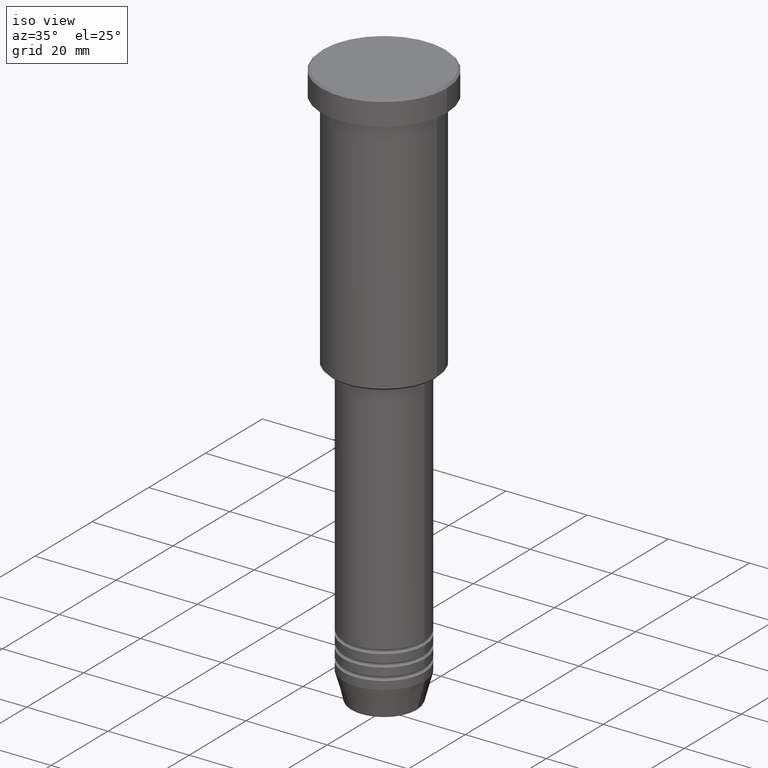
[diagram: clean part render]
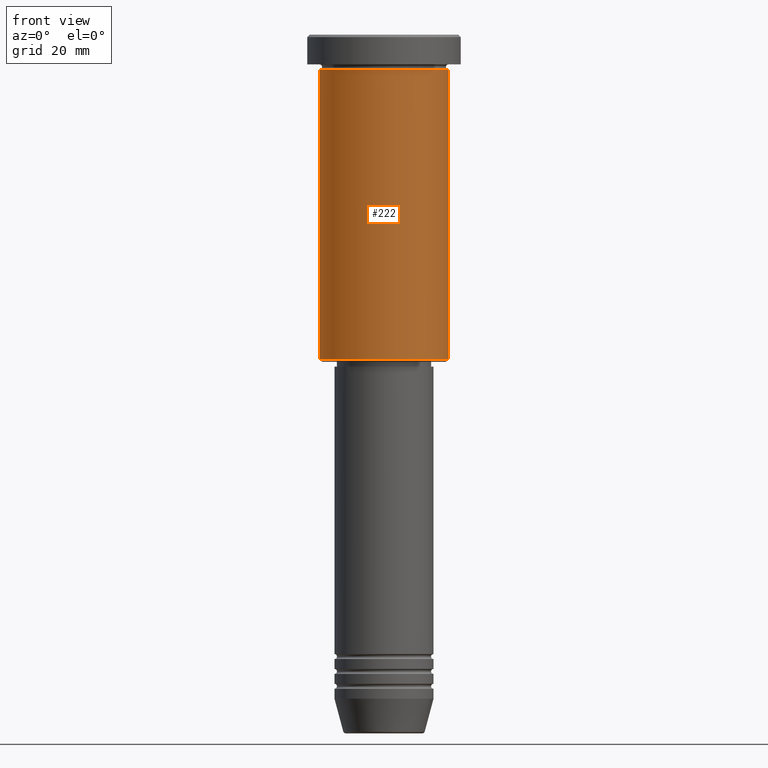
[diagram: tour spotlight — one face highlighted and labeled with its STEP entity id]
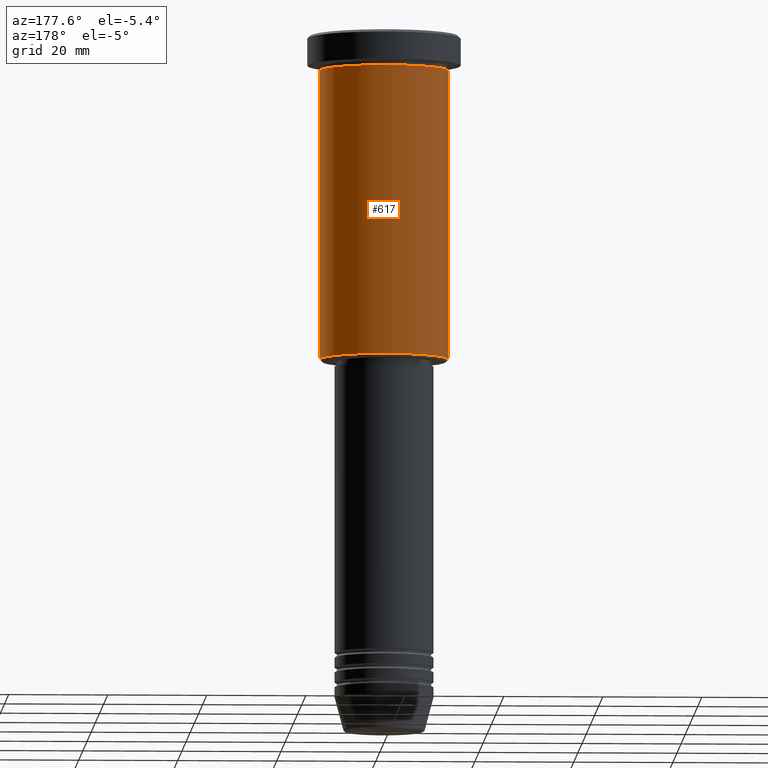
[diagram: tour spotlight — one face highlighted and labeled with its STEP entity id]
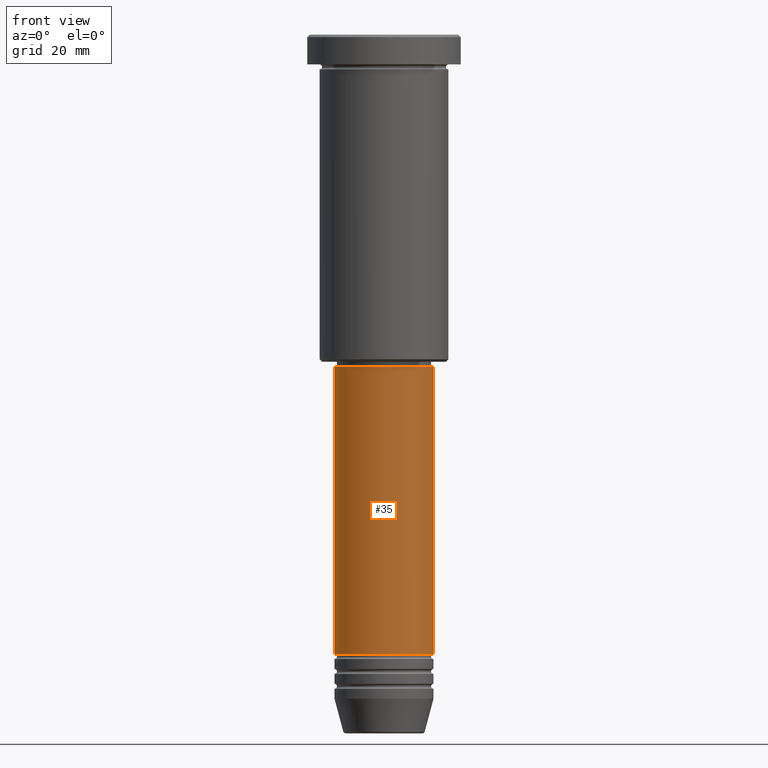
[diagram: tour spotlight — one face highlighted and labeled with its STEP entity id]
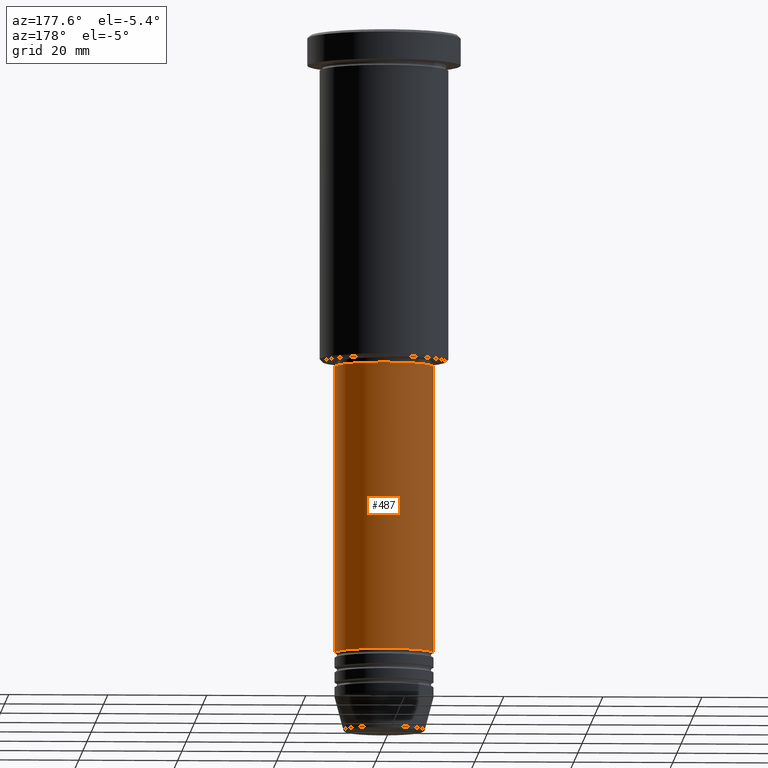
[diagram: tour spotlight — one face highlighted and labeled with its STEP entity id]
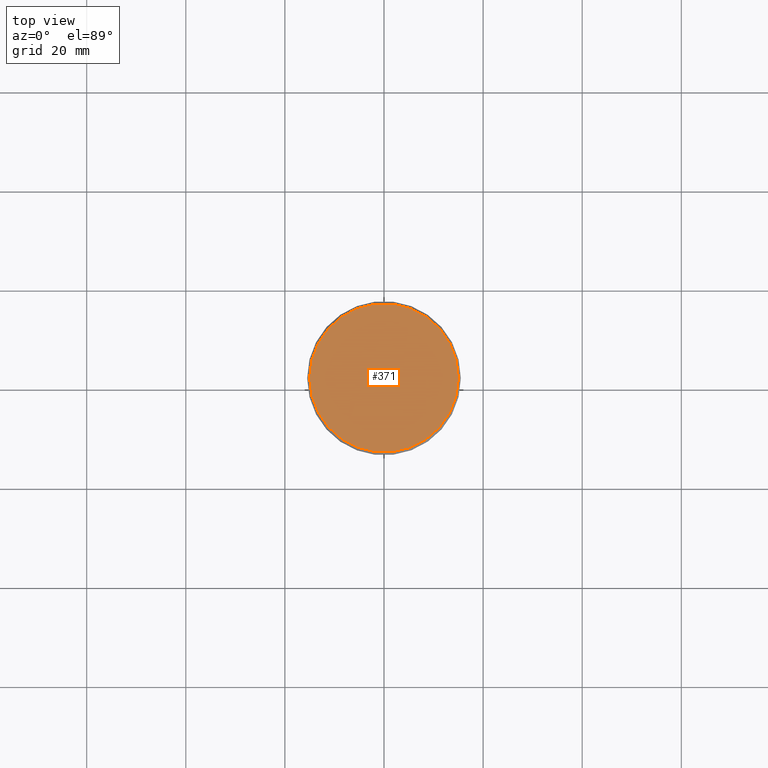
[diagram: tour spotlight — one face highlighted and labeled with its STEP entity id]
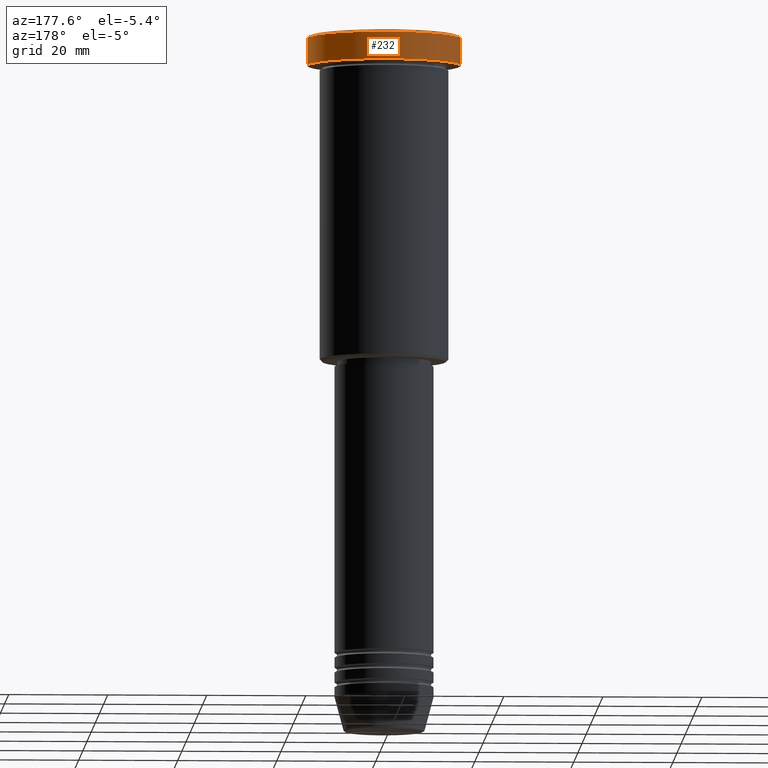
[diagram: tour spotlight — one face highlighted and labeled with its STEP entity id]
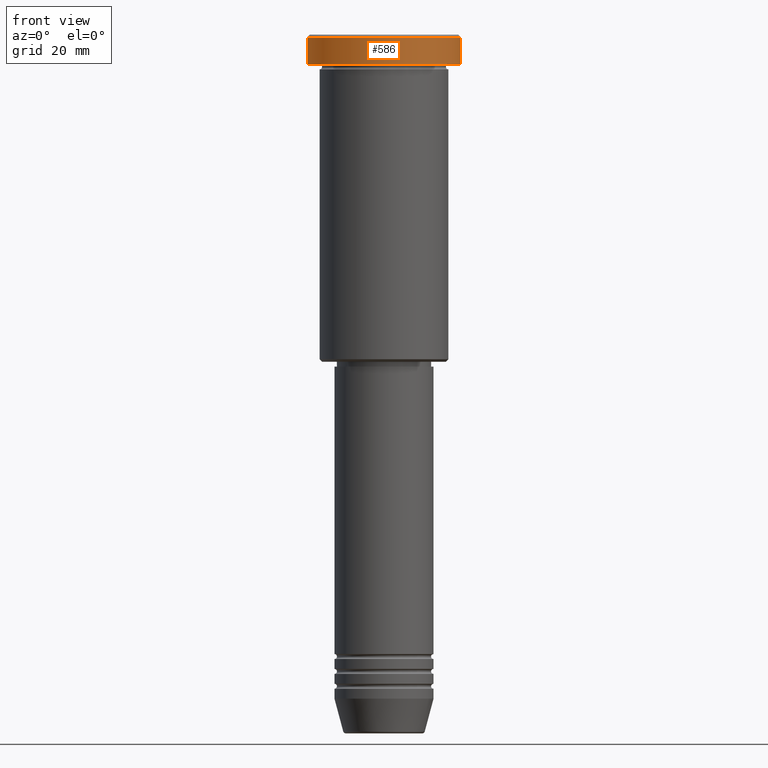
[diagram: tour spotlight — one face highlighted and labeled with its STEP entity id]
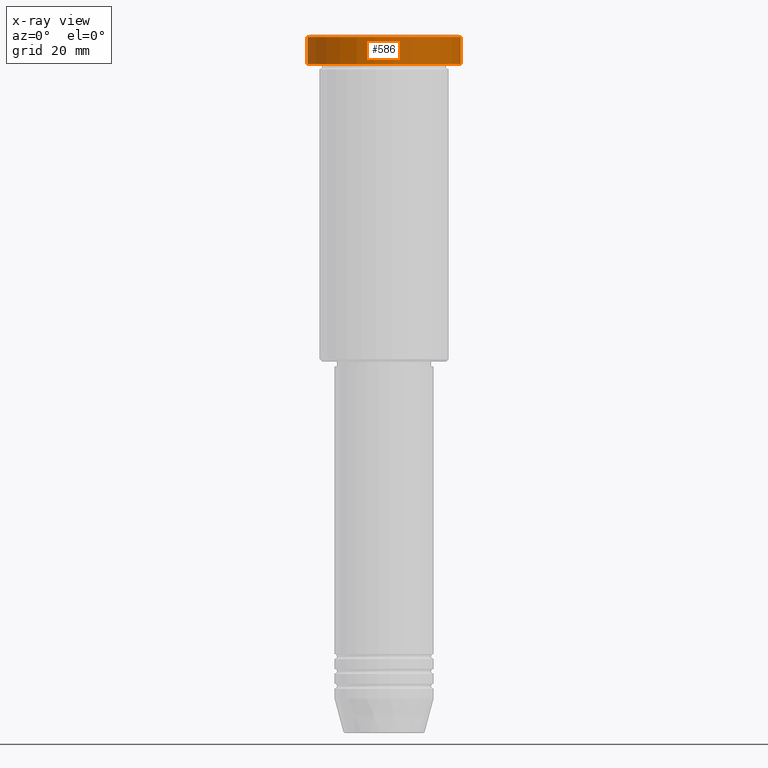
[diagram: x-ray of the same camera — body ghosted, this tour face saturated]
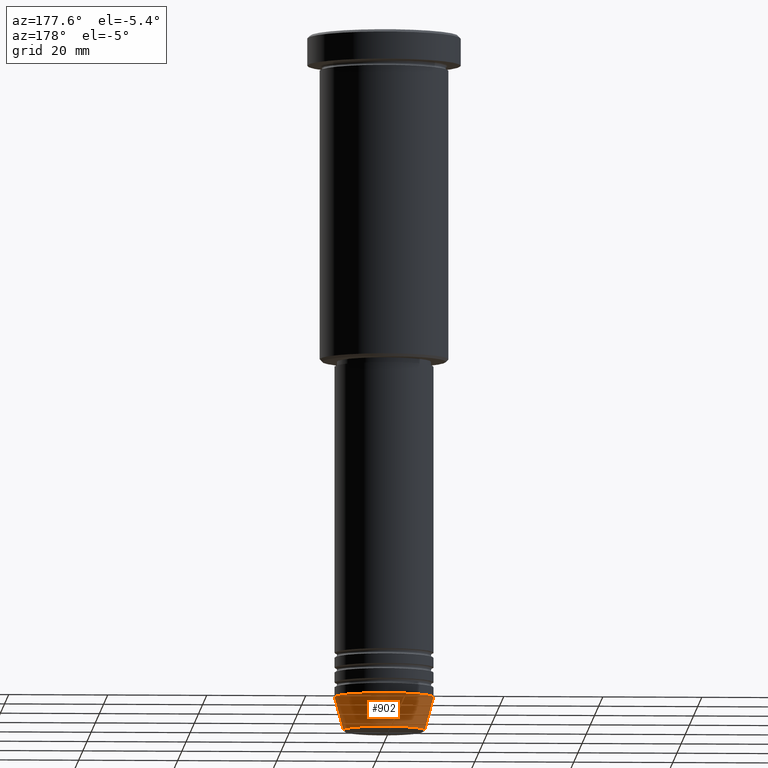
[diagram: tour spotlight — one face highlighted and labeled with its STEP entity id]
A machine part: a face-by-face anatomy tour. The part has 43 B-rep faces; the first image is the clean iso view, then the 8 largest visible faces are spotlighted one at a time (largest first), each with its STEP entity span.

Face 1 — front view, entity #222. In plain terms, the highlighted cylindrical surface (partial cylindrical patch) has radius 13 mm, axis along (-0, -0, 1).
Definition (entity closure, byte-faithful):
#6 = EDGE_CURVE ( 'NONE', #512, #1166, #1007, .T. ) ;
#100 = VECTOR ( 'NONE', #834, 1000.000000000000000 ) ;
#168 = CARTESIAN_POINT ( 'NONE',  ( -13.00000000000000000, 1.592040838891559095E-15, 0.000000000000000000 ) ) ;
#172 = CARTESIAN_POINT ( 'NONE',  ( 0.000000000000000000, 0.000000000000000000, -65.49999999999997158 ) ) ;
#221 = CARTESIAN_POINT ( 'NONE',  ( 13.00000000000000000, 0.000000000000000000, -6.999999999999995559 ) ) ;
#222 = ADVANCED_FACE ( 'NONE', ( #945 ), #927, .T. ) ;
#260 = DIRECTION ( 'NONE',  ( 1.000000000000000000, 0.000000000000000000, 0.000000000000000000 ) ) ;
#317 = VERTEX_POINT ( 'NONE', #385 ) ;
#385 = CARTESIAN_POINT ( 'NONE',  ( -13.00000000000000000, 1.592040838891559095E-15, -65.49999999999997158 ) ) ;
#393 = CARTESIAN_POINT ( 'NONE',  ( -13.00000000000000000, 1.592040838891559095E-15, -6.999999999999995559 ) ) ;
#438 = LINE ( 'NONE', #168, #861 ) ;
#470 = DIRECTION ( 'NONE',  ( -0.000000000000000000, -0.000000000000000000, 1.000000000000000000 ) ) ;
#496 = CARTESIAN_POINT ( 'NONE',  ( 0.000000000000000000, 0.000000000000000000, 0.000000000000000000 ) ) ;
#512 = VERTEX_POINT ( 'NONE', #920 ) ;
#547 = EDGE_LOOP ( 'NONE', ( #700, #639, #793, #966 ) ) ;
#633 = EDGE_CURVE ( 'NONE', #317, #1155, #438, .T. ) ;
#639 = ORIENTED_EDGE ( 'NONE', *, *, #1077, .T. ) ;
#671 = CIRCLE ( 'NONE', #1107, 13.00000000000000000 ) ;
#696 = EDGE_CURVE ( 'NONE', #1155, #1166, #795, .T. ) ;
#700 = ORIENTED_EDGE ( 'NONE', *, *, #633, .F. ) ;
#793 = ORIENTED_EDGE ( 'NONE', *, *, #6, .T. ) ;
#795 = CIRCLE ( 'NONE', #1124, 13.00000000000000000 ) ;
#803 = DIRECTION ( 'NONE',  ( -0.000000000000000000, -0.000000000000000000, 1.000000000000000000 ) ) ;
#826 = DIRECTION ( 'NONE',  ( -1.000000000000000000, 0.000000000000000000, 0.000000000000000000 ) ) ;
#834 = DIRECTION ( 'NONE',  ( -0.000000000000000000, -0.000000000000000000, 1.000000000000000000 ) ) ;
#851 = DIRECTION ( 'NONE',  ( 1.000000000000000000, 0.000000000000000000, 0.000000000000000000 ) ) ;
#861 = VECTOR ( 'NONE', #1156, 1000.000000000000000 ) ;
#920 = CARTESIAN_POINT ( 'NONE',  ( 13.00000000000000000, 0.000000000000000000, -65.49999999999997158 ) ) ;
#927 = CYLINDRICAL_SURFACE ( 'NONE', #1164, 13.00000000000000000 ) ;
#937 = CARTESIAN_POINT ( 'NONE',  ( 13.00000000000000000, 0.000000000000000000, 0.000000000000000000 ) ) ;
#945 = FACE_OUTER_BOUND ( 'NONE', #547, .T. ) ;
#966 = ORIENTED_EDGE ( 'NONE', *, *, #696, .F. ) ;
#989 = CARTESIAN_POINT ( 'NONE',  ( 0.000000000000000000, 0.000000000000000000, -6.999999999999995559 ) ) ;
#1007 = LINE ( 'NONE', #937, #100 ) ;
#1013 = DIRECTION ( 'NONE',  ( -0.000000000000000000, -0.000000000000000000, 1.000000000000000000 ) ) ;
#1077 = EDGE_CURVE ( 'NONE', #317, #512, #671, .T. ) ;
#1107 = AXIS2_PLACEMENT_3D ( 'NONE', #172, #470, #826 ) ;
#1124 = AXIS2_PLACEMENT_3D ( 'NONE', #989, #803, #260 ) ;
#1155 = VERTEX_POINT ( 'NONE', #393 ) ;
#1156 = DIRECTION ( 'NONE',  ( -0.000000000000000000, -0.000000000000000000, 1.000000000000000000 ) ) ;
#1164 = AXIS2_PLACEMENT_3D ( 'NONE', #496, #1013, #851 ) ;
#1166 = VERTEX_POINT ( 'NONE', #221 ) ;

Face 2 — auxiliary view, entity #617. In plain terms, the highlighted cylindrical surface (partial cylindrical patch) has radius 13 mm, axis along (-0, -0, 1).
Definition (entity closure, byte-faithful):
#6 = EDGE_CURVE ( 'NONE', #512, #1166, #1007, .T. ) ;
#58 = EDGE_LOOP ( 'NONE', ( #169, #593, #620, #604 ) ) ;
#100 = VECTOR ( 'NONE', #834, 1000.000000000000000 ) ;
#132 = DIRECTION ( 'NONE',  ( -0.000000000000000000, -0.000000000000000000, 1.000000000000000000 ) ) ;
#154 = CARTESIAN_POINT ( 'NONE',  ( 0.000000000000000000, 0.000000000000000000, -6.999999999999995559 ) ) ;
#168 = CARTESIAN_POINT ( 'NONE',  ( -13.00000000000000000, 1.592040838891559095E-15, 0.000000000000000000 ) ) ;
#169 = ORIENTED_EDGE ( 'NONE', *, *, #1171, .T. ) ;
#221 = CARTESIAN_POINT ( 'NONE',  ( 13.00000000000000000, 0.000000000000000000, -6.999999999999995559 ) ) ;
#226 = CARTESIAN_POINT ( 'NONE',  ( 0.000000000000000000, 0.000000000000000000, -65.49999999999997158 ) ) ;
#265 = FACE_OUTER_BOUND ( 'NONE', #58, .T. ) ;
#291 = CARTESIAN_POINT ( 'NONE',  ( 0.000000000000000000, 0.000000000000000000, 0.000000000000000000 ) ) ;
#317 = VERTEX_POINT ( 'NONE', #385 ) ;
#343 = DIRECTION ( 'NONE',  ( 1.000000000000000000, 0.000000000000000000, 0.000000000000000000 ) ) ;
#374 = AXIS2_PLACEMENT_3D ( 'NONE', #291, #1028, #650 ) ;
#385 = CARTESIAN_POINT ( 'NONE',  ( -13.00000000000000000, 1.592040838891559095E-15, -65.49999999999997158 ) ) ;
#393 = CARTESIAN_POINT ( 'NONE',  ( -13.00000000000000000, 1.592040838891559095E-15, -6.999999999999995559 ) ) ;
#438 = LINE ( 'NONE', #168, #861 ) ;
#451 = AXIS2_PLACEMENT_3D ( 'NONE', #154, #712, #343 ) ;
#512 = VERTEX_POINT ( 'NONE', #920 ) ;
#538 = EDGE_CURVE ( 'NONE', #1166, #1155, #995, .T. ) ;
#593 = ORIENTED_EDGE ( 'NONE', *, *, #633, .T. ) ;
#604 = ORIENTED_EDGE ( 'NONE', *, *, #6, .F. ) ;
#617 = ADVANCED_FACE ( 'NONE', ( #265 ), #701, .T. ) ;
#620 = ORIENTED_EDGE ( 'NONE', *, *, #538, .F. ) ;
#633 = EDGE_CURVE ( 'NONE', #317, #1155, #438, .T. ) ;
#650 = DIRECTION ( 'NONE',  ( 1.000000000000000000, 0.000000000000000000, 0.000000000000000000 ) ) ;
#701 = CYLINDRICAL_SURFACE ( 'NONE', #374, 13.00000000000000000 ) ;
#712 = DIRECTION ( 'NONE',  ( -0.000000000000000000, -0.000000000000000000, 1.000000000000000000 ) ) ;
#740 = DIRECTION ( 'NONE',  ( -1.000000000000000000, 0.000000000000000000, 0.000000000000000000 ) ) ;
#834 = DIRECTION ( 'NONE',  ( -0.000000000000000000, -0.000000000000000000, 1.000000000000000000 ) ) ;
#861 = VECTOR ( 'NONE', #1156, 1000.000000000000000 ) ;
#920 = CARTESIAN_POINT ( 'NONE',  ( 13.00000000000000000, 0.000000000000000000, -65.49999999999997158 ) ) ;
#922 = AXIS2_PLACEMENT_3D ( 'NONE', #226, #132, #740 ) ;
#937 = CARTESIAN_POINT ( 'NONE',  ( 13.00000000000000000, 0.000000000000000000, 0.000000000000000000 ) ) ;
#995 = CIRCLE ( 'NONE', #451, 13.00000000000000000 ) ;
#1007 = LINE ( 'NONE', #937, #100 ) ;
#1028 = DIRECTION ( 'NONE',  ( -0.000000000000000000, -0.000000000000000000, 1.000000000000000000 ) ) ;
#1126 = CIRCLE ( 'NONE', #922, 13.00000000000000000 ) ;
#1155 = VERTEX_POINT ( 'NONE', #393 ) ;
#1156 = DIRECTION ( 'NONE',  ( -0.000000000000000000, -0.000000000000000000, 1.000000000000000000 ) ) ;
#1166 = VERTEX_POINT ( 'NONE', #221 ) ;
#1171 = EDGE_CURVE ( 'NONE', #512, #317, #1126, .T. ) ;

Face 3 — front view, entity #35. In plain terms, the highlighted cylindrical surface (partial cylindrical patch) has radius 10 mm, axis along (-0, -0, 1).
Definition (entity closure, byte-faithful):
#29 = DIRECTION ( 'NONE',  ( -0.000000000000000000, -0.000000000000000000, 1.000000000000000000 ) ) ;
#35 = ADVANCED_FACE ( 'NONE', ( #660 ), #1024, .T. ) ;
#44 = CIRCLE ( 'NONE', #784, 10.00000000000000000 ) ;
#76 = LINE ( 'NONE', #786, #492 ) ;
#127 = DIRECTION ( 'NONE',  ( 1.000000000000000000, 0.000000000000000000, 0.000000000000000000 ) ) ;
#130 = VERTEX_POINT ( 'NONE', #283 ) ;
#198 = DIRECTION ( 'NONE',  ( -0.000000000000000000, -0.000000000000000000, 1.000000000000000000 ) ) ;
#205 = CARTESIAN_POINT ( 'NONE',  ( 0.000000000000000000, 0.000000000000000000, -67.00000000000000000 ) ) ;
#208 = CARTESIAN_POINT ( 'NONE',  ( 0.000000000000000000, 0.000000000000000000, 0.000000000000000000 ) ) ;
#277 = VERTEX_POINT ( 'NONE', #468 ) ;
#283 = CARTESIAN_POINT ( 'NONE',  ( -10.00000000000000000, 1.224646799147353256E-15, -124.9999999999999716 ) ) ;
#306 = DIRECTION ( 'NONE',  ( 1.000000000000000000, 0.000000000000000000, 0.000000000000000000 ) ) ;
#307 = ORIENTED_EDGE ( 'NONE', *, *, #388, .T. ) ;
#333 = EDGE_CURVE ( 'NONE', #560, #277, #616, .T. ) ;
#372 = ORIENTED_EDGE ( 'NONE', *, *, #557, .F. ) ;
#388 = EDGE_CURVE ( 'NONE', #1103, #277, #494, .T. ) ;
#428 = EDGE_LOOP ( 'NONE', ( #372, #997, #307, #455 ) ) ;
#437 = EDGE_CURVE ( 'NONE', #130, #1103, #44, .T. ) ;
#453 = CARTESIAN_POINT ( 'NONE',  ( 10.00000000000000000, 0.000000000000000000, -124.9999999999999716 ) ) ;
#455 = ORIENTED_EDGE ( 'NONE', *, *, #333, .F. ) ;
#468 = CARTESIAN_POINT ( 'NONE',  ( 10.00000000000000000, 0.000000000000000000, -67.00000000000000000 ) ) ;
#492 = VECTOR ( 'NONE', #1062, 1000.000000000000000 ) ;
#494 = LINE ( 'NONE', #677, #1070 ) ;
#557 = EDGE_CURVE ( 'NONE', #130, #560, #76, .T. ) ;
#560 = VERTEX_POINT ( 'NONE', #968 ) ;
#616 = CIRCLE ( 'NONE', #1110, 10.00000000000000000 ) ;
#660 = FACE_OUTER_BOUND ( 'NONE', #428, .T. ) ;
#677 = CARTESIAN_POINT ( 'NONE',  ( 10.00000000000000000, 0.000000000000000000, 0.000000000000000000 ) ) ;
#691 = AXIS2_PLACEMENT_3D ( 'NONE', #208, #198, #306 ) ;
#755 = DIRECTION ( 'NONE',  ( 1.000000000000000000, 0.000000000000000000, 0.000000000000000000 ) ) ;
#784 = AXIS2_PLACEMENT_3D ( 'NONE', #1129, #29, #755 ) ;
#786 = CARTESIAN_POINT ( 'NONE',  ( -10.00000000000000000, 1.224646799147353256E-15, 0.000000000000000000 ) ) ;
#841 = DIRECTION ( 'NONE',  ( -0.000000000000000000, -0.000000000000000000, 1.000000000000000000 ) ) ;
#941 = DIRECTION ( 'NONE',  ( -0.000000000000000000, -0.000000000000000000, 1.000000000000000000 ) ) ;
#968 = CARTESIAN_POINT ( 'NONE',  ( -10.00000000000000000, 1.224646799147353256E-15, -67.00000000000000000 ) ) ;
#997 = ORIENTED_EDGE ( 'NONE', *, *, #437, .T. ) ;
#1024 = CYLINDRICAL_SURFACE ( 'NONE', #691, 10.00000000000000000 ) ;
#1062 = DIRECTION ( 'NONE',  ( -0.000000000000000000, -0.000000000000000000, 1.000000000000000000 ) ) ;
#1070 = VECTOR ( 'NONE', #941, 1000.000000000000000 ) ;
#1103 = VERTEX_POINT ( 'NONE', #453 ) ;
#1110 = AXIS2_PLACEMENT_3D ( 'NONE', #205, #841, #127 ) ;
#1129 = CARTESIAN_POINT ( 'NONE',  ( 0.000000000000000000, 0.000000000000000000, -124.9999999999999716 ) ) ;

Face 4 — auxiliary view, entity #487. In plain terms, the highlighted cylindrical surface (partial cylindrical patch) has radius 10 mm, axis along (-0, -0, 1).
Definition (entity closure, byte-faithful):
#4 = CIRCLE ( 'NONE', #883, 10.00000000000000000 ) ;
#42 = DIRECTION ( 'NONE',  ( -0.000000000000000000, -0.000000000000000000, 1.000000000000000000 ) ) ;
#55 = EDGE_CURVE ( 'NONE', #277, #560, #4, .T. ) ;
#76 = LINE ( 'NONE', #786, #492 ) ;
#130 = VERTEX_POINT ( 'NONE', #283 ) ;
#237 = CARTESIAN_POINT ( 'NONE',  ( 0.000000000000000000, 0.000000000000000000, 0.000000000000000000 ) ) ;
#243 = DIRECTION ( 'NONE',  ( 1.000000000000000000, 0.000000000000000000, 0.000000000000000000 ) ) ;
#277 = VERTEX_POINT ( 'NONE', #468 ) ;
#283 = CARTESIAN_POINT ( 'NONE',  ( -10.00000000000000000, 1.224646799147353256E-15, -124.9999999999999716 ) ) ;
#383 = ORIENTED_EDGE ( 'NONE', *, *, #388, .F. ) ;
#388 = EDGE_CURVE ( 'NONE', #1103, #277, #494, .T. ) ;
#443 = ORIENTED_EDGE ( 'NONE', *, *, #460, .T. ) ;
#453 = CARTESIAN_POINT ( 'NONE',  ( 10.00000000000000000, 0.000000000000000000, -124.9999999999999716 ) ) ;
#460 = EDGE_CURVE ( 'NONE', #1103, #130, #864, .T. ) ;
#468 = CARTESIAN_POINT ( 'NONE',  ( 10.00000000000000000, 0.000000000000000000, -67.00000000000000000 ) ) ;
#487 = ADVANCED_FACE ( 'NONE', ( #687 ), #1052, .T. ) ;
#492 = VECTOR ( 'NONE', #1062, 1000.000000000000000 ) ;
#494 = LINE ( 'NONE', #677, #1070 ) ;
#513 = DIRECTION ( 'NONE',  ( 1.000000000000000000, 0.000000000000000000, 0.000000000000000000 ) ) ;
#514 = DIRECTION ( 'NONE',  ( -0.000000000000000000, -0.000000000000000000, 1.000000000000000000 ) ) ;
#557 = EDGE_CURVE ( 'NONE', #130, #560, #76, .T. ) ;
#560 = VERTEX_POINT ( 'NONE', #968 ) ;
#570 = EDGE_LOOP ( 'NONE', ( #443, #1097, #950, #383 ) ) ;
#636 = AXIS2_PLACEMENT_3D ( 'NONE', #237, #1115, #1168 ) ;
#677 = CARTESIAN_POINT ( 'NONE',  ( 10.00000000000000000, 0.000000000000000000, 0.000000000000000000 ) ) ;
#687 = FACE_OUTER_BOUND ( 'NONE', #570, .T. ) ;
#786 = CARTESIAN_POINT ( 'NONE',  ( -10.00000000000000000, 1.224646799147353256E-15, 0.000000000000000000 ) ) ;
#859 = CARTESIAN_POINT ( 'NONE',  ( 0.000000000000000000, 0.000000000000000000, -124.9999999999999716 ) ) ;
#864 = CIRCLE ( 'NONE', #1148, 10.00000000000000000 ) ;
#883 = AXIS2_PLACEMENT_3D ( 'NONE', #919, #514, #243 ) ;
#919 = CARTESIAN_POINT ( 'NONE',  ( 0.000000000000000000, 0.000000000000000000, -67.00000000000000000 ) ) ;
#941 = DIRECTION ( 'NONE',  ( -0.000000000000000000, -0.000000000000000000, 1.000000000000000000 ) ) ;
#950 = ORIENTED_EDGE ( 'NONE', *, *, #55, .F. ) ;
#968 = CARTESIAN_POINT ( 'NONE',  ( -10.00000000000000000, 1.224646799147353256E-15, -67.00000000000000000 ) ) ;
#1052 = CYLINDRICAL_SURFACE ( 'NONE', #636, 10.00000000000000000 ) ;
#1062 = DIRECTION ( 'NONE',  ( -0.000000000000000000, -0.000000000000000000, 1.000000000000000000 ) ) ;
#1070 = VECTOR ( 'NONE', #941, 1000.000000000000000 ) ;
#1097 = ORIENTED_EDGE ( 'NONE', *, *, #557, .T. ) ;
#1103 = VERTEX_POINT ( 'NONE', #453 ) ;
#1115 = DIRECTION ( 'NONE',  ( -0.000000000000000000, -0.000000000000000000, 1.000000000000000000 ) ) ;
#1148 = AXIS2_PLACEMENT_3D ( 'NONE', #859, #42, #513 ) ;
#1168 = DIRECTION ( 'NONE',  ( 1.000000000000000000, 0.000000000000000000, 0.000000000000000000 ) ) ;

Face 5 — top view, entity #371. In plain terms, the highlighted planar face has unit normal (0, -0, 1).
Definition (entity closure, byte-faithful):
#131 = PLANE ( 'NONE',  #925 ) ;
#215 = CIRCLE ( 'NONE', #1053, 14.99999999999998579 ) ;
#349 = DIRECTION ( 'NONE',  ( -0.000000000000000000, -0.000000000000000000, 1.000000000000000000 ) ) ;
#360 = VERTEX_POINT ( 'NONE', #1045 ) ;
#371 = ADVANCED_FACE ( 'NONE', ( #589 ), #131, .T. ) ;
#390 = CARTESIAN_POINT ( 'NONE',  ( -14.99999999999998579, 0.000000000000000000, 0.000000000000000000 ) ) ;
#399 = DIRECTION ( 'NONE',  ( -0.000000000000000000, -0.000000000000000000, 1.000000000000000000 ) ) ;
#441 = DIRECTION ( 'NONE',  ( 1.000000000000000000, 0.000000000000000000, 0.000000000000000000 ) ) ;
#510 = CARTESIAN_POINT ( 'NONE',  ( 0.000000000000000000, 0.000000000000000000, 0.000000000000000000 ) ) ;
#583 = EDGE_LOOP ( 'NONE', ( #812, #1173 ) ) ;
#584 = DIRECTION ( 'NONE',  ( 1.000000000000000000, 0.000000000000000000, 0.000000000000000000 ) ) ;
#589 = FACE_OUTER_BOUND ( 'NONE', #583, .T. ) ;
#812 = ORIENTED_EDGE ( 'NONE', *, *, #867, .T. ) ;
#867 = EDGE_CURVE ( 'NONE', #1021, #360, #215, .T. ) ;
#880 = CIRCLE ( 'NONE', #972, 14.99999999999998579 ) ;
#925 = AXIS2_PLACEMENT_3D ( 'NONE', #510, #951, #584 ) ;
#934 = DIRECTION ( 'NONE',  ( 1.000000000000000000, 0.000000000000000000, 0.000000000000000000 ) ) ;
#951 = DIRECTION ( 'NONE',  ( 0.000000000000000000, -0.000000000000000000, 1.000000000000000000 ) ) ;
#972 = AXIS2_PLACEMENT_3D ( 'NONE', #1122, #399, #934 ) ;
#1021 = VERTEX_POINT ( 'NONE', #390 ) ;
#1045 = CARTESIAN_POINT ( 'NONE',  ( 14.99999999999998579, 1.867586368699712587E-15, 0.000000000000000000 ) ) ;
#1053 = AXIS2_PLACEMENT_3D ( 'NONE', #1154, #349, #441 ) ;
#1122 = CARTESIAN_POINT ( 'NONE',  ( 0.000000000000000000, 0.000000000000000000, 0.000000000000000000 ) ) ;
#1154 = CARTESIAN_POINT ( 'NONE',  ( 0.000000000000000000, 0.000000000000000000, 0.000000000000000000 ) ) ;
#1159 = EDGE_CURVE ( 'NONE', #360, #1021, #880, .T. ) ;
#1173 = ORIENTED_EDGE ( 'NONE', *, *, #1159, .T. ) ;

Face 6 — auxiliary view, entity #232. In plain terms, the highlighted cylindrical surface (partial cylindrical patch) has radius 15.5 mm, axis along (-0, -0, 1).
Definition (entity closure, byte-faithful):
#14 = FACE_OUTER_BOUND ( 'NONE', #906, .T. ) ;
#21 = CIRCLE ( 'NONE', #137, 15.50000000000000000 ) ;
#51 = DIRECTION ( 'NONE',  ( 0.000000000000000000, 0.000000000000000000, -1.000000000000000000 ) ) ;
#54 = CARTESIAN_POINT ( 'NONE',  ( -15.50000000000000000, 1.898202538678397557E-15, -5.999999999999995559 ) ) ;
#74 = EDGE_CURVE ( 'NONE', #466, #888, #21, .T. ) ;
#79 = CARTESIAN_POINT ( 'NONE',  ( -15.50000000000000000, 1.898202538678397557E-15, 0.000000000000000000 ) ) ;
#137 = AXIS2_PLACEMENT_3D ( 'NONE', #771, #51, #857 ) ;
#202 = DIRECTION ( 'NONE',  ( 1.000000000000000000, 0.000000000000000000, 0.000000000000000000 ) ) ;
#218 = ORIENTED_EDGE ( 'NONE', *, *, #874, .T. ) ;
#232 = ADVANCED_FACE ( 'NONE', ( #14 ), #391, .T. ) ;
#287 = LINE ( 'NONE', #79, #992 ) ;
#295 = DIRECTION ( 'NONE',  ( -0.000000000000000000, -0.000000000000000000, 1.000000000000000000 ) ) ;
#369 = DIRECTION ( 'NONE',  ( 1.000000000000000000, 0.000000000000000000, 0.000000000000000000 ) ) ;
#391 = CYLINDRICAL_SURFACE ( 'NONE', #412, 15.50000000000000000 ) ;
#398 = VERTEX_POINT ( 'NONE', #54 ) ;
#412 = AXIS2_PLACEMENT_3D ( 'NONE', #1105, #295, #202 ) ;
#466 = VERTEX_POINT ( 'NONE', #683 ) ;
#608 = ORIENTED_EDGE ( 'NONE', *, *, #1099, .T. ) ;
#641 = EDGE_CURVE ( 'NONE', #870, #888, #980, .T. ) ;
#670 = CIRCLE ( 'NONE', #689, 15.50000000000000000 ) ;
#681 = ORIENTED_EDGE ( 'NONE', *, *, #74, .T. ) ;
#682 = CARTESIAN_POINT ( 'NONE',  ( 15.50000000000000000, 0.000000000000000000, -0.5000000000000125455 ) ) ;
#683 = CARTESIAN_POINT ( 'NONE',  ( -15.50000000000000000, 1.898202538678397557E-15, -0.5000000000000125455 ) ) ;
#686 = ORIENTED_EDGE ( 'NONE', *, *, #641, .F. ) ;
#689 = AXIS2_PLACEMENT_3D ( 'NONE', #805, #1172, #369 ) ;
#710 = CARTESIAN_POINT ( 'NONE',  ( 15.50000000000000000, 0.000000000000000000, 0.000000000000000000 ) ) ;
#716 = DIRECTION ( 'NONE',  ( -0.000000000000000000, -0.000000000000000000, 1.000000000000000000 ) ) ;
#771 = CARTESIAN_POINT ( 'NONE',  ( 0.000000000000000000, 0.000000000000000000, -0.5000000000000125455 ) ) ;
#778 = VECTOR ( 'NONE', #716, 1000.000000000000000 ) ;
#805 = CARTESIAN_POINT ( 'NONE',  ( 0.000000000000000000, 0.000000000000000000, -5.999999999999995559 ) ) ;
#857 = DIRECTION ( 'NONE',  ( 1.000000000000000000, 0.000000000000000000, 0.000000000000000000 ) ) ;
#870 = VERTEX_POINT ( 'NONE', #1162 ) ;
#874 = EDGE_CURVE ( 'NONE', #870, #398, #670, .T. ) ;
#888 = VERTEX_POINT ( 'NONE', #682 ) ;
#906 = EDGE_LOOP ( 'NONE', ( #218, #608, #681, #686 ) ) ;
#980 = LINE ( 'NONE', #710, #778 ) ;
#992 = VECTOR ( 'NONE', #1011, 1000.000000000000000 ) ;
#1011 = DIRECTION ( 'NONE',  ( -0.000000000000000000, -0.000000000000000000, 1.000000000000000000 ) ) ;
#1099 = EDGE_CURVE ( 'NONE', #398, #466, #287, .T. ) ;
#1105 = CARTESIAN_POINT ( 'NONE',  ( 0.000000000000000000, 0.000000000000000000, 0.000000000000000000 ) ) ;
#1162 = CARTESIAN_POINT ( 'NONE',  ( 15.50000000000000000, 0.000000000000000000, -5.999999999999995559 ) ) ;
#1172 = DIRECTION ( 'NONE',  ( -0.000000000000000000, -0.000000000000000000, 1.000000000000000000 ) ) ;

Face 7 — front view, entity #586. An x-ray twin of the same camera follows (body ghosted, this face saturated) — the face is partly hidden behind the body. In plain terms, the highlighted cylindrical surface (partial cylindrical patch) has radius 15.5 mm, axis along (-0, -0, 1).
Definition (entity closure, byte-faithful):
#54 = CARTESIAN_POINT ( 'NONE',  ( -15.50000000000000000, 1.898202538678397557E-15, -5.999999999999995559 ) ) ;
#79 = CARTESIAN_POINT ( 'NONE',  ( -15.50000000000000000, 1.898202538678397557E-15, 0.000000000000000000 ) ) ;
#160 = DIRECTION ( 'NONE',  ( 1.000000000000000000, 0.000000000000000000, 0.000000000000000000 ) ) ;
#190 = DIRECTION ( 'NONE',  ( 1.000000000000000000, 0.000000000000000000, 0.000000000000000000 ) ) ;
#193 = AXIS2_PLACEMENT_3D ( 'NONE', #605, #1158, #190 ) ;
#242 = FACE_OUTER_BOUND ( 'NONE', #628, .T. ) ;
#257 = DIRECTION ( 'NONE',  ( 0.000000000000000000, 0.000000000000000000, -1.000000000000000000 ) ) ;
#268 = ORIENTED_EDGE ( 'NONE', *, *, #714, .T. ) ;
#287 = LINE ( 'NONE', #79, #992 ) ;
#362 = CARTESIAN_POINT ( 'NONE',  ( 0.000000000000000000, 0.000000000000000000, -5.999999999999995559 ) ) ;
#398 = VERTEX_POINT ( 'NONE', #54 ) ;
#418 = ORIENTED_EDGE ( 'NONE', *, *, #1099, .F. ) ;
#466 = VERTEX_POINT ( 'NONE', #683 ) ;
#522 = CYLINDRICAL_SURFACE ( 'NONE', #193, 15.50000000000000000 ) ;
#544 = DIRECTION ( 'NONE',  ( 1.000000000000000000, 0.000000000000000000, 0.000000000000000000 ) ) ;
#561 = CIRCLE ( 'NONE', #879, 15.50000000000000000 ) ;
#586 = ADVANCED_FACE ( 'NONE', ( #242 ), #522, .T. ) ;
#605 = CARTESIAN_POINT ( 'NONE',  ( 0.000000000000000000, 0.000000000000000000, 0.000000000000000000 ) ) ;
#613 = AXIS2_PLACEMENT_3D ( 'NONE', #362, #1087, #544 ) ;
#628 = EDGE_LOOP ( 'NONE', ( #418, #268, #1098, #1003 ) ) ;
#641 = EDGE_CURVE ( 'NONE', #870, #888, #980, .T. ) ;
#648 = EDGE_CURVE ( 'NONE', #888, #466, #561, .T. ) ;
#682 = CARTESIAN_POINT ( 'NONE',  ( 15.50000000000000000, 0.000000000000000000, -0.5000000000000125455 ) ) ;
#683 = CARTESIAN_POINT ( 'NONE',  ( -15.50000000000000000, 1.898202538678397557E-15, -0.5000000000000125455 ) ) ;
#710 = CARTESIAN_POINT ( 'NONE',  ( 15.50000000000000000, 0.000000000000000000, 0.000000000000000000 ) ) ;
#714 = EDGE_CURVE ( 'NONE', #398, #870, #958, .T. ) ;
#716 = DIRECTION ( 'NONE',  ( -0.000000000000000000, -0.000000000000000000, 1.000000000000000000 ) ) ;
#778 = VECTOR ( 'NONE', #716, 1000.000000000000000 ) ;
#870 = VERTEX_POINT ( 'NONE', #1162 ) ;
#879 = AXIS2_PLACEMENT_3D ( 'NONE', #1072, #257, #160 ) ;
#888 = VERTEX_POINT ( 'NONE', #682 ) ;
#958 = CIRCLE ( 'NONE', #613, 15.50000000000000000 ) ;
#980 = LINE ( 'NONE', #710, #778 ) ;
#992 = VECTOR ( 'NONE', #1011, 1000.000000000000000 ) ;
#1003 = ORIENTED_EDGE ( 'NONE', *, *, #648, .T. ) ;
#1011 = DIRECTION ( 'NONE',  ( -0.000000000000000000, -0.000000000000000000, 1.000000000000000000 ) ) ;
#1072 = CARTESIAN_POINT ( 'NONE',  ( 0.000000000000000000, 0.000000000000000000, -0.5000000000000125455 ) ) ;
#1087 = DIRECTION ( 'NONE',  ( -0.000000000000000000, -0.000000000000000000, 1.000000000000000000 ) ) ;
#1098 = ORIENTED_EDGE ( 'NONE', *, *, #641, .T. ) ;
#1099 = EDGE_CURVE ( 'NONE', #398, #466, #287, .T. ) ;
#1158 = DIRECTION ( 'NONE',  ( -0.000000000000000000, -0.000000000000000000, 1.000000000000000000 ) ) ;
#1162 = CARTESIAN_POINT ( 'NONE',  ( 15.50000000000000000, 0.000000000000000000, -5.999999999999995559 ) ) ;

Face 8 — auxiliary view, entity #902. In plain terms, the highlighted conical surface has half-angle 15 deg.
Definition (entity closure, byte-faithful):
#40 = CIRCLE ( 'NONE', #195, 8.223655072137191269 ) ;
#59 = AXIS2_PLACEMENT_3D ( 'NONE', #148, #66, #704 ) ;
#66 = DIRECTION ( 'NONE',  ( -0.000000000000000000, -0.000000000000000000, 1.000000000000000000 ) ) ;
#78 = CIRCLE ( 'NONE', #59, 10.00000000000000000 ) ;
#108 = CARTESIAN_POINT ( 'NONE',  ( -8.223655072137191269, 1.115877042642912054E-15, -140.6294095225512706 ) ) ;
#148 = CARTESIAN_POINT ( 'NONE',  ( 0.000000000000000000, 0.000000000000000000, -134.0000000000000000 ) ) ;
#153 = VERTEX_POINT ( 'NONE', #1102 ) ;
#195 = AXIS2_PLACEMENT_3D ( 'NONE', #273, #638, #1083 ) ;
#197 = VECTOR ( 'NONE', #502, 1000.000000000000000 ) ;
#262 = CARTESIAN_POINT ( 'NONE',  ( -10.00000000000000000, 1.224646799147353256E-15, -134.0000000000000000 ) ) ;
#273 = CARTESIAN_POINT ( 'NONE',  ( 0.000000000000000000, 0.000000000000000000, -140.6294095225512706 ) ) ;
#351 = ORIENTED_EDGE ( 'NONE', *, *, #1117, .T. ) ;
#427 = CONICAL_SURFACE ( 'NONE', #469, 10.00000000000000000, 0.2617993877991500740 ) ;
#450 = EDGE_CURVE ( 'NONE', #1143, #829, #1121, .T. ) ;
#457 = VERTEX_POINT ( 'NONE', #594 ) ;
#469 = AXIS2_PLACEMENT_3D ( 'NONE', #876, #609, #871 ) ;
#502 = DIRECTION ( 'NONE',  ( -0.2588190451025213501, 3.169619151431772337E-17, 0.9659258262890680902 ) ) ;
#594 = CARTESIAN_POINT ( 'NONE',  ( 10.00000000000000000, 0.000000000000000000, -134.0000000000000000 ) ) ;
#609 = DIRECTION ( 'NONE',  ( -0.000000000000000000, -0.000000000000000000, 1.000000000000000000 ) ) ;
#638 = DIRECTION ( 'NONE',  ( -0.000000000000000000, -0.000000000000000000, 1.000000000000000000 ) ) ;
#704 = DIRECTION ( 'NONE',  ( 1.000000000000000000, 0.000000000000000000, 0.000000000000000000 ) ) ;
#804 = LINE ( 'NONE', #1088, #820 ) ;
#815 = EDGE_CURVE ( 'NONE', #457, #829, #78, .T. ) ;
#818 = ORIENTED_EDGE ( 'NONE', *, *, #815, .F. ) ;
#820 = VECTOR ( 'NONE', #1170, 1000.000000000000000 ) ;
#829 = VERTEX_POINT ( 'NONE', #262 ) ;
#839 = ORIENTED_EDGE ( 'NONE', *, *, #450, .T. ) ;
#847 = ORIENTED_EDGE ( 'NONE', *, *, #1104, .F. ) ;
#871 = DIRECTION ( 'NONE',  ( 1.000000000000000000, 0.000000000000000000, 0.000000000000000000 ) ) ;
#876 = CARTESIAN_POINT ( 'NONE',  ( 0.000000000000000000, 0.000000000000000000, -134.0000000000000000 ) ) ;
#902 = ADVANCED_FACE ( 'NONE', ( #1133 ), #427, .T. ) ;
#1040 = CARTESIAN_POINT ( 'NONE',  ( -10.00000000000000000, 1.224646799147353256E-15, -134.0000000000000000 ) ) ;
#1060 = EDGE_LOOP ( 'NONE', ( #351, #839, #818, #847 ) ) ;
#1083 = DIRECTION ( 'NONE',  ( 1.000000000000000000, 0.000000000000000000, 0.000000000000000000 ) ) ;
#1088 = CARTESIAN_POINT ( 'NONE',  ( 10.00000000000000000, 0.000000000000000000, -134.0000000000000000 ) ) ;
#1102 = CARTESIAN_POINT ( 'NONE',  ( 8.223655072137191269, 0.000000000000000000, -140.6294095225512706 ) ) ;
#1104 = EDGE_CURVE ( 'NONE', #153, #457, #804, .T. ) ;
#1117 = EDGE_CURVE ( 'NONE', #153, #1143, #40, .T. ) ;
#1121 = LINE ( 'NONE', #1040, #197 ) ;
#1133 = FACE_OUTER_BOUND ( 'NONE', #1060, .T. ) ;
#1143 = VERTEX_POINT ( 'NONE', #108 ) ;
#1170 = DIRECTION ( 'NONE',  ( 0.2588190451025213501, 0.000000000000000000, 0.9659258262890680902 ) ) ;